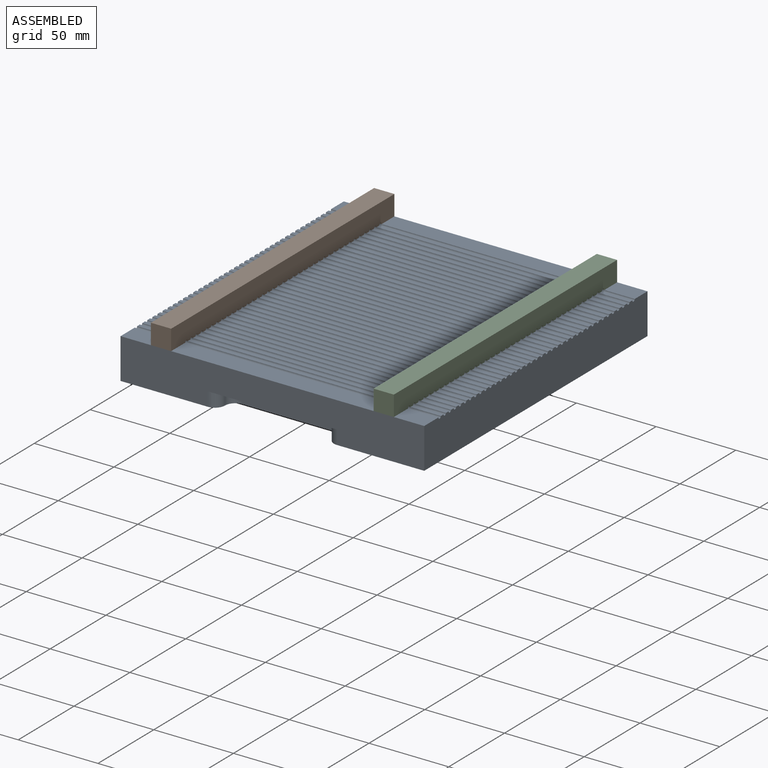
[diagram: assembled view]
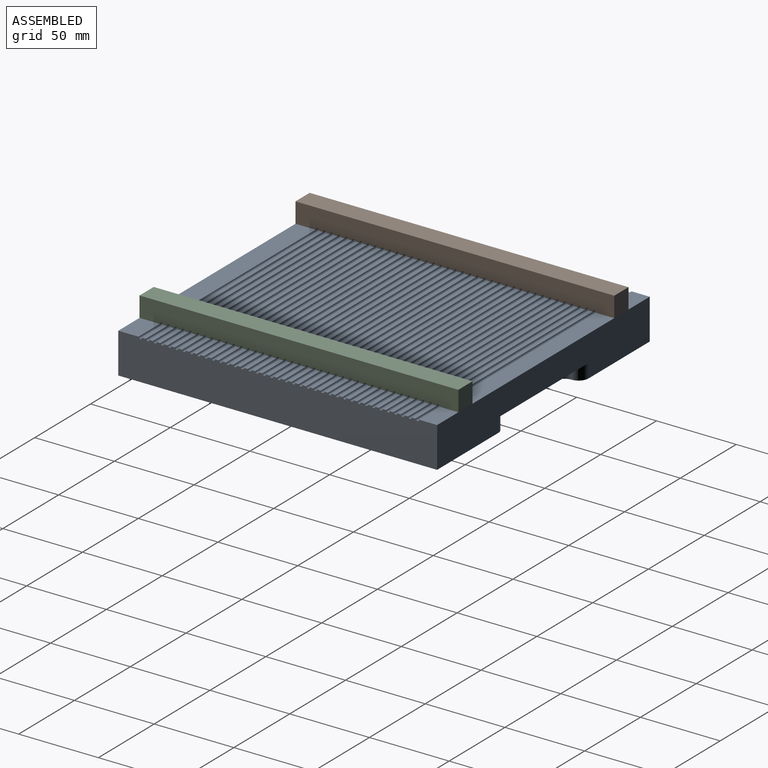
[diagram: assembled view, second angle]
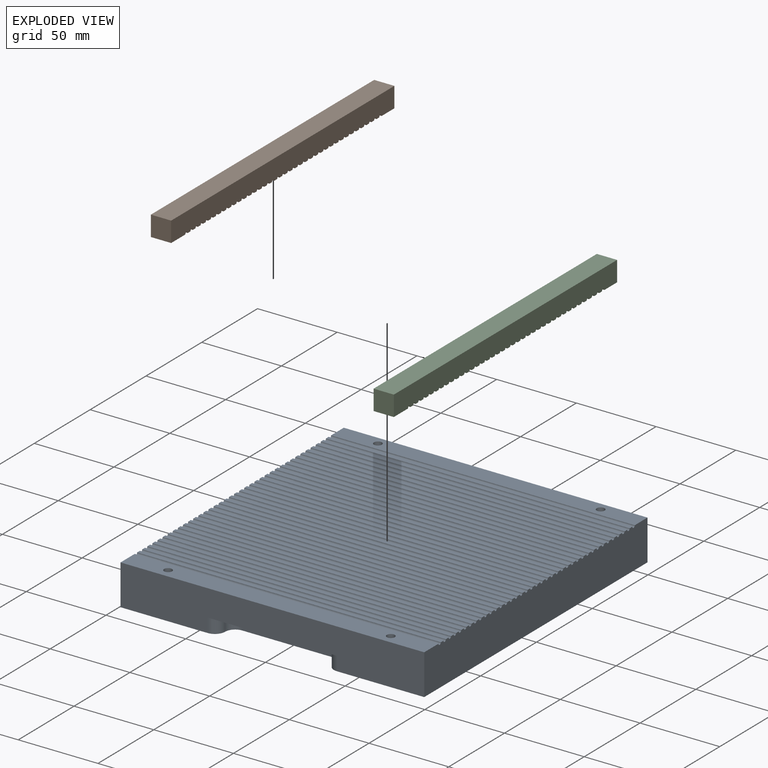
[diagram: exploded view]
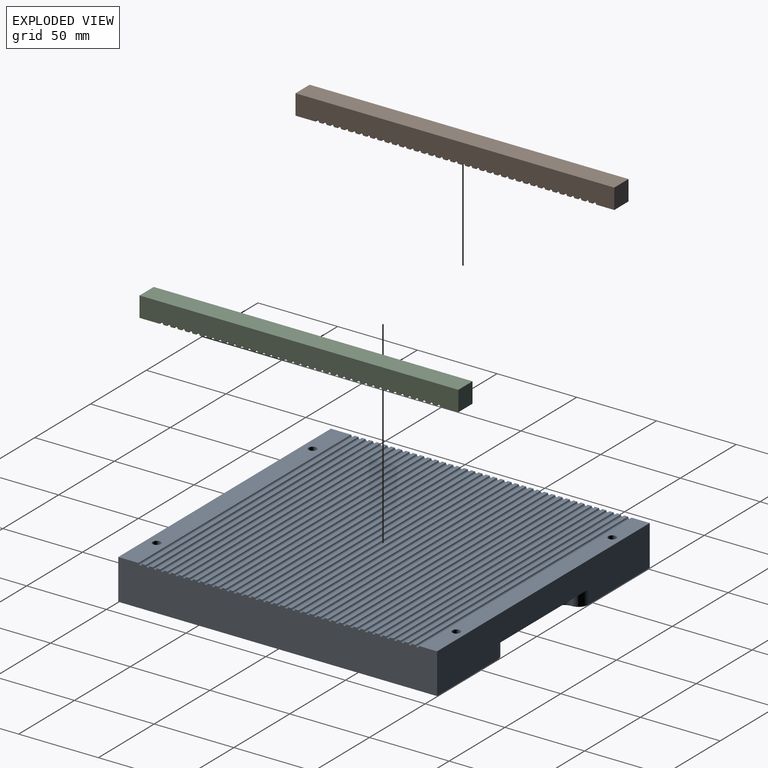
[diagram: exploded view, second angle]
ASSEMBLY  parts=3 mates=2
PART A: 112 faces, bbox 190.5x200x25.4 mm
  f0: plane 190.5x25.4mm, normal (0,-1,0), area 4128.7mm2, adj f1,f42,f81,f83,f101,f105,f106
  f1: plane 200x190.5mm, normal (0,0,-1), area 36251.4mm2, adj f0,f2,f42,f83,f92,f94,f96,f98
  f2: plane 190.5x25.4mm, normal (0,1,0), area 4128.7mm2, adj f1,f42,f46,f83,f103,f108,f111
  f3: cylinder r=1.08mm len=190.5mm, axis (1,0,0), area 646.1mm2, adj f42,f81,f82,f83
  f4: cylinder r=1.08mm len=190.5mm, axis (1,0,0), area 646.1mm2, adj f42,f80,f82,f83
  f5: cylinder r=1.08mm len=190.5mm, axis (1,0,0), area 646.1mm2, adj f42,f79,f80,f83
  f6: cylinder r=1.08mm len=190.5mm, axis (1,0,0), area 646.1mm2, adj f42,f78,f79,f83
  f7: cylinder r=1.08mm len=190.5mm, axis (1,0,0), area 646.1mm2, adj f42,f77,f78,f83
  f8: cylinder r=1.08mm len=190.5mm, axis (1,0,0), area 646.1mm2, adj f42,f76,f77,f83
  f9: cylinder r=1.08mm len=190.5mm, axis (1,0,0), area 646.1mm2, adj f42,f75,f76,f83
  f10: cylinder r=1.08mm len=190.5mm, axis (1,0,0), area 646.1mm2, adj f42,f74,f75,f83
  f11: cylinder r=1.08mm len=190.5mm, axis (1,0,0), area 646.1mm2, adj f42,f73,f74,f83
  f12: cylinder r=1.08mm len=190.5mm, axis (1,0,0), area 646.1mm2, adj f42,f72,f73,f83
  f13: cylinder r=1.08mm len=190.5mm, axis (1,0,0), area 646.1mm2, adj f42,f71,f72,f83
  f14: cylinder r=1.08mm len=190.5mm, axis (1,0,0), area 646.1mm2, adj f42,f70,f71,f83
  f15: cylinder r=1.08mm len=190.5mm, axis (1,0,0), area 646.1mm2, adj f42,f69,f70,f83
  f16: cylinder r=1.08mm len=190.5mm, axis (1,0,0), area 646.1mm2, adj f42,f68,f69,f83
  f17: cylinder r=1.08mm len=190.5mm, axis (1,0,0), area 646.1mm2, adj f42,f67,f68,f83
  f18: cylinder r=1.08mm len=190.5mm, axis (1,0,0), area 646.1mm2, adj f42,f66,f67,f83
  f19: cylinder r=1.08mm len=190.5mm, axis (1,0,0), area 646.1mm2, adj f42,f65,f66,f83
  f20: cylinder r=1.08mm len=190.5mm, axis (1,0,0), area 646.1mm2, adj f42,f64,f65,f83
  f21: cylinder r=1.08mm len=190.5mm, axis (1,0,0), area 646.1mm2, adj f42,f63,f64,f83
  f22: cylinder r=1.08mm len=190.5mm, axis (1,0,0), area 646.1mm2, adj f42,f62,f63,f83
  f23: cylinder r=1.08mm len=190.5mm, axis (1,0,0), area 646.1mm2, adj f42,f61,f62,f83
  f24: cylinder r=1.08mm len=190.5mm, axis (1,0,0), area 646.1mm2, adj f42,f60,f61,f83
  f25: cylinder r=1.08mm len=190.5mm, axis (1,0,0), area 646.1mm2, adj f42,f59,f60,f83
  f26: cylinder r=1.08mm len=190.5mm, axis (1,0,0), area 646.1mm2, adj f42,f47,f58,f83
  f27: cylinder r=1.08mm len=190.5mm, axis (1,0,0), area 646.1mm2, adj f42,f57,f58,f83
  f28: cylinder r=1.08mm len=190.5mm, axis (1,0,0), area 646.1mm2, adj f42,f56,f57,f83
  f29: cylinder r=1.08mm len=190.5mm, axis (1,0,0), area 646.1mm2, adj f42,f55,f56,f83
  f30: cylinder r=1.08mm len=190.5mm, axis (1,0,0), area 646.1mm2, adj f42,f54,f55,f83
  f31: cylinder r=1.08mm len=190.5mm, axis (1,0,0), area 646.1mm2, adj f42,f53,f54,f83
  f32: cylinder r=1.08mm len=190.5mm, axis (1,0,0), area 646.1mm2, adj f42,f52,f53,f83
  f33: cylinder r=1.08mm len=190.5mm, axis (1,0,0), area 646.1mm2, adj f42,f51,f52,f83
  f34: cylinder r=1.08mm len=190.5mm, axis (1,0,0), area 646.1mm2, adj f42,f50,f51,f83
  f35: cylinder r=1.08mm len=190.5mm, axis (1,0,0), area 646.1mm2, adj f42,f49,f50,f83
  f36: cylinder r=1.08mm len=190.5mm, axis (1,0,0), area 646.1mm2, adj f42,f43,f48,f83
  f37: cylinder r=1.08mm len=190.5mm, axis (1,0,0), area 646.1mm2, adj f42,f47,f59,f83
  f38: cylinder r=1.08mm len=190.5mm, axis (1,0,0), area 646.1mm2, adj f42,f45,f46,f83
  f39: cylinder r=1.08mm len=190.5mm, axis (1,0,0), area 646.1mm2, adj f42,f44,f45,f83
  f40: cylinder r=1.08mm len=190.5mm, axis (1,0,0), area 646.1mm2, adj f42,f44,f48,f83
  f41: cylinder r=1.08mm len=190.5mm, axis (1,0,0), area 646.1mm2, adj f42,f43,f49,f83
  f42: plane 200x25.4mm, normal (1,0,0), area 5008.6mm2, adj f0,f1,f2,f3,f4,f5,f6,f7
  f43: plane 190.5x2.41mm, normal (0,0,1), area 459.7mm2, adj f36,f41,f42,f83
  f44: plane 190.5x2.41mm, normal (0,0,1), area 459.7mm2, adj f39,f40,f42,f83
  f45: plane 190.5x2.41mm, normal (0,0,1), area 459.7mm2, adj f38,f39,f42,f83
  f46: plane 190.5x11.41mm, normal (0,0,1), area 2133.4mm2, adj f2,f38,f42,f83,f88,f90
  f47: plane 190.5x2.41mm, normal (0,0,1), area 459.7mm2, adj f26,f37,f42,f83
  f48: plane 190.5x2.41mm, normal (0,0,1), area 459.7mm2, adj f36,f40,f42,f83
  f49: plane 190.5x2.41mm, normal (0,0,1), area 459.7mm2, adj f35,f41,f42,f83
  f50: plane 190.5x2.41mm, normal (0,0,1), area 459.7mm2, adj f34,f35,f42,f83
  f51: plane 190.5x2.41mm, normal (0,0,1), area 459.7mm2, adj f33,f34,f42,f83
  f52: plane 190.5x2.41mm, normal (0,0,1), area 459.7mm2, adj f32,f33,f42,f83
  f53: plane 190.5x2.41mm, normal (0,0,1), area 459.7mm2, adj f31,f32,f42,f83
  f54: plane 190.5x2.41mm, normal (0,0,1), area 459.7mm2, adj f30,f31,f42,f83
  f55: plane 190.5x2.41mm, normal (0,0,1), area 459.7mm2, adj f29,f30,f42,f83
  f56: plane 190.5x2.41mm, normal (0,0,1), area 459.7mm2, adj f28,f29,f42,f83
  f57: plane 190.5x2.41mm, normal (0,0,1), area 459.7mm2, adj f27,f28,f42,f83
  f58: plane 190.5x2.41mm, normal (0,0,1), area 459.7mm2, adj f26,f27,f42,f83
  f59: plane 190.5x2.41mm, normal (0,0,1), area 459.7mm2, adj f25,f37,f42,f83
  f60: plane 190.5x2.41mm, normal (0,0,1), area 459.7mm2, adj f24,f25,f42,f83
  f61: plane 190.5x2.41mm, normal (0,0,1), area 459.7mm2, adj f23,f24,f42,f83
  f62: plane 190.5x2.41mm, normal (0,0,1), area 459.7mm2, adj f22,f23,f42,f83
  f63: plane 190.5x2.41mm, normal (0,0,1), area 459.7mm2, adj f21,f22,f42,f83
  f64: plane 190.5x2.41mm, normal (0,0,1), area 459.7mm2, adj f20,f21,f42,f83
  f65: plane 190.5x2.41mm, normal (0,0,1), area 459.7mm2, adj f19,f20,f42,f83
  f66: plane 190.5x2.41mm, normal (0,0,1), area 459.7mm2, adj f18,f19,f42,f83
  f67: plane 190.5x2.41mm, normal (0,0,1), area 459.7mm2, adj f17,f18,f42,f83
  f68: plane 190.5x2.41mm, normal (0,0,1), area 459.7mm2, adj f16,f17,f42,f83
  f69: plane 190.5x2.41mm, normal (0,0,1), area 459.7mm2, adj f15,f16,f42,f83
  f70: plane 190.5x2.41mm, normal (0,0,1), area 459.7mm2, adj f14,f15,f42,f83
  f71: plane 190.5x2.41mm, normal (0,0,1), area 459.7mm2, adj f13,f14,f42,f83
  f72: plane 190.5x2.41mm, normal (0,0,1), area 459.7mm2, adj f12,f13,f42,f83
  f73: plane 190.5x2.41mm, normal (0,0,1), area 459.7mm2, adj f11,f12,f42,f83
  f74: plane 190.5x2.41mm, normal (0,0,1), area 459.7mm2, adj f10,f11,f42,f83
  f75: plane 190.5x2.41mm, normal (0,0,1), area 459.7mm2, adj f9,f10,f42,f83
  f76: plane 190.5x2.41mm, normal (0,0,1), area 459.7mm2, adj f8,f9,f42,f83
  f77: plane 190.5x2.41mm, normal (0,0,1), area 459.7mm2, adj f7,f8,f42,f83
  f78: plane 190.5x2.41mm, normal (0,0,1), area 459.7mm2, adj f6,f7,f42,f83
  f79: plane 190.5x2.41mm, normal (0,0,1), area 459.7mm2, adj f5,f6,f42,f83
  f80: plane 190.5x2.41mm, normal (0,0,1), area 459.7mm2, adj f4,f5,f42,f83
  f81: plane 190.5x12.7mm, normal (0,0,1), area 2380.1mm2, adj f0,f3,f42,f83,f84,f86
  f82: plane 190.5x2.41mm, normal (0,0,1), area 459.7mm2, adj f3,f4,f42,f83
  f83: plane 200x25.4mm, normal (-1,0,0), area 5008.6mm2, adj f0,f1,f2,f3,f4,f5,f6,f7
  f84: cylinder r=2.5mm len=6.35mm, axis (0,0,1), area 99.7mm2, adj f81,f85
  f85: plane 5x5mm, normal (0,0,1), area 19.6mm2, adj f84
  f86: cylinder r=2.5mm len=6.35mm, axis (0,0,1), area 99.7mm2, adj f81,f87
  f87: plane 5x5mm, normal (0,0,1), area 19.6mm2, adj f86
  f88: cylinder r=2.5mm len=6.35mm, axis (0,0,1), area 99.7mm2, adj f46,f89
  f89: plane 5x5mm, normal (0,0,1), area 19.6mm2, adj f88
  f90: cylinder r=2.5mm len=6.35mm, axis (0,0,1), area 99.7mm2, adj f46,f91
  f91: plane 5x5mm, normal (0,0,1), area 19.6mm2, adj f90
  f92: cylinder r=3mm len=6.35mm, axis (0,0,-1), area 119.7mm2, adj f1,f93
  f93: plane 6x6mm, normal (0,0,-1), area 28.3mm2, adj f92
  f94: cylinder r=3mm len=6.35mm, axis (0,0,-1), area 119.7mm2, adj f1,f95
  f95: plane 6x6mm, normal (0,0,-1), area 28.3mm2, adj f94
  f96: cylinder r=3mm len=6.35mm, axis (0,0,-1), area 119.7mm2, adj f1,f97
  f97: plane 6x6mm, normal (0,0,-1), area 28.3mm2, adj f96
  f98: cylinder r=3mm len=6.35mm, axis (0,0,-1), area 119.7mm2, adj f1,f99
  f99: plane 6x6mm, normal (0,0,-1), area 28.3mm2, adj f98
  f100: plane 55.63x8.76mm, normal (0,-1,0), area 487.5mm2, adj f1,f101,f104,f107
  f101: plane 81.03x12.7mm, normal (0,0,-1), area 867.7mm2, adj f0,f100,f104,f105,f106,f107
  f102: plane 55.63x8.76mm, normal (0,1,0), area 487.5mm2, adj f1,f103,f109,f110
  f103: plane 81.03x12.7mm, normal (0,0,-1), area 867.7mm2, adj f2,f102,f108,f109,f110,f111
  f104: cylinder r=6.35mm len=8.76mm, axis (0,0,1), area 87.4mm2, adj f1,f100,f101,f105
  f105: cylinder r=6.35mm len=8.76mm, axis (0,0,1), area 87.4mm2, adj f0,f1,f101,f104
  f106: cylinder r=6.35mm len=8.76mm, axis (0,0,-1), area 87.4mm2, adj f0,f1,f101,f107
  f107: cylinder r=6.35mm len=8.76mm, axis (0,0,-1), area 87.4mm2, adj f1,f100,f101,f106
  f108: cylinder r=6.35mm len=8.76mm, axis (0,0,1), area 87.4mm2, adj f1,f2,f103,f109
  f109: cylinder r=6.35mm len=8.76mm, axis (0,0,1), area 87.4mm2, adj f1,f102,f103,f108
  f110: cylinder r=6.35mm len=8.76mm, axis (0,0,-1), area 87.4mm2, adj f1,f102,f103,f111
  f111: cylinder r=6.35mm len=8.76mm, axis (0,0,-1), area 87.4mm2, adj f1,f2,f103,f110
PART B: 88 faces, bbox 12.7x200x12.7 mm
  f0: plane 12.7x2.41mm, normal (0,0,-1), area 30.6mm2, adj f40,f42,f86,f87
  f1: plane 12.7x2.41mm, normal (0,0,-1), area 30.6mm2, adj f40,f42,f85,f86
  f2: plane 12.7x2.41mm, normal (0,0,-1), area 30.6mm2, adj f40,f42,f84,f85
  f3: plane 12.7x2.41mm, normal (0,0,-1), area 30.6mm2, adj f40,f42,f83,f84
  f4: plane 12.7x2.41mm, normal (0,0,-1), area 30.6mm2, adj f40,f42,f82,f83
  f5: plane 12.7x2.41mm, normal (0,0,-1), area 30.6mm2, adj f40,f42,f81,f82
  f6: plane 12.7x2.41mm, normal (0,0,-1), area 30.6mm2, adj f40,f42,f80,f81
  f7: plane 12.7x2.41mm, normal (0,0,-1), area 30.6mm2, adj f40,f42,f79,f80
  f8: plane 12.7x2.41mm, normal (0,0,-1), area 30.6mm2, adj f40,f42,f78,f79
  f9: plane 12.7x2.41mm, normal (0,0,-1), area 30.6mm2, adj f40,f42,f77,f78
  f10: plane 12.7x2.41mm, normal (0,0,-1), area 30.6mm2, adj f40,f42,f76,f77
  f11: plane 12.7x2.41mm, normal (0,0,-1), area 30.6mm2, adj f40,f42,f75,f76
  f12: plane 12.7x2.41mm, normal (0,0,-1), area 30.6mm2, adj f40,f42,f74,f75
  f13: plane 12.7x2.41mm, normal (0,0,-1), area 30.6mm2, adj f40,f42,f73,f74
  f14: plane 12.7x2.41mm, normal (0,0,-1), area 30.6mm2, adj f40,f42,f72,f73
  f15: plane 12.7x2.41mm, normal (0,0,-1), area 30.6mm2, adj f40,f42,f71,f72
  f16: plane 12.7x2.41mm, normal (0,0,-1), area 30.6mm2, adj f40,f42,f70,f71
  f17: plane 12.7x2.41mm, normal (0,0,-1), area 30.6mm2, adj f40,f42,f69,f70
  f18: plane 12.7x2.41mm, normal (0,0,-1), area 30.6mm2, adj f40,f42,f68,f69
  f19: plane 12.7x2.41mm, normal (0,0,-1), area 30.6mm2, adj f40,f42,f67,f68
  f20: plane 12.7x2.41mm, normal (0,0,-1), area 30.6mm2, adj f40,f42,f66,f67
  f21: plane 12.7x2.41mm, normal (0,0,-1), area 30.6mm2, adj f40,f42,f65,f66
  f22: plane 12.7x2.41mm, normal (0,0,-1), area 30.6mm2, adj f40,f42,f64,f65
  f23: plane 12.7x2.41mm, normal (0,0,-1), area 30.6mm2, adj f40,f42,f63,f64
  f24: plane 12.7x2.41mm, normal (0,0,-1), area 30.6mm2, adj f40,f42,f62,f63
  f25: plane 12.7x2.41mm, normal (0,0,-1), area 30.6mm2, adj f40,f42,f61,f62
  f26: plane 12.7x2.41mm, normal (0,0,-1), area 30.6mm2, adj f40,f42,f60,f61
  f27: plane 12.7x2.41mm, normal (0,0,-1), area 30.6mm2, adj f40,f42,f59,f60
  f28: plane 12.7x2.41mm, normal (0,0,-1), area 30.6mm2, adj f40,f42,f58,f59
  f29: plane 12.7x2.41mm, normal (0,0,-1), area 30.6mm2, adj f40,f42,f57,f58
  f30: plane 12.7x2.41mm, normal (0,0,-1), area 30.6mm2, adj f40,f42,f56,f57
  f31: plane 12.7x2.41mm, normal (0,0,-1), area 30.6mm2, adj f40,f42,f55,f56
  f32: plane 12.7x2.41mm, normal (0,0,-1), area 30.6mm2, adj f40,f42,f54,f55
  f33: plane 12.7x2.41mm, normal (0,0,-1), area 30.6mm2, adj f40,f42,f53,f54
  f34: plane 12.7x2.41mm, normal (0,0,-1), area 30.6mm2, adj f40,f42,f52,f53
  f35: plane 12.7x2.41mm, normal (0,0,-1), area 30.6mm2, adj f40,f42,f51,f52
  f36: plane 12.7x2.41mm, normal (0,0,-1), area 30.6mm2, adj f40,f42,f50,f51
  f37: plane 12.7x2.41mm, normal (0,0,-1), area 30.6mm2, adj f40,f42,f49,f50
  f38: plane 12.7x12.7mm, normal (0,0,-1), area 141.7mm2, adj f39,f40,f42,f47,f49
  f39: plane 12.7x12.7mm, normal (0,1,0), area 161.3mm2, adj f38,f40,f42,f43
  f40: plane 200x12.7mm, normal (-1,0,0), area 2468.6mm2, adj f0,f1,f2,f3,f4,f5,f6,f7
  f41: plane 12.7x12.7mm, normal (0,-1,0), area 161.3mm2, adj f40,f42,f43,f44
  f42: plane 200x12.7mm, normal (1,0,0), area 2468.6mm2, adj f0,f1,f2,f3,f4,f5,f6,f7
  f43: plane 200x12.7mm, normal (0,0,1), area 2540mm2, adj f39,f40,f41,f42
  f44: plane 12.7x11.41mm, normal (0,0,-1), area 125.2mm2, adj f40,f41,f42,f45,f87
  f45: cylinder r=2.5mm len=6.35mm, axis (0,0,-1), area 99.7mm2, adj f44,f46
  f46: plane 5x5mm, normal (0,0,-1), area 19.6mm2, adj f45
  f47: cylinder r=2.5mm len=6.35mm, axis (0,0,-1), area 99.7mm2, adj f38,f48
  f48: plane 5x5mm, normal (0,0,-1), area 19.6mm2, adj f47
  f49: cylinder r=1.08mm len=12.7mm, axis (1,0,0), area 43.1mm2, adj f37,f38,f40,f42
  f50: cylinder r=1.08mm len=12.7mm, axis (1,0,0), area 43.1mm2, adj f36,f37,f40,f42
  f51: cylinder r=1.08mm len=12.7mm, axis (1,0,0), area 43.1mm2, adj f35,f36,f40,f42
  f52: cylinder r=1.08mm len=12.7mm, axis (1,0,0), area 43.1mm2, adj f34,f35,f40,f42
  f53: cylinder r=1.08mm len=12.7mm, axis (1,0,0), area 43.1mm2, adj f33,f34,f40,f42
  f54: cylinder r=1.08mm len=12.7mm, axis (1,0,0), area 43.1mm2, adj f32,f33,f40,f42
  f55: cylinder r=1.08mm len=12.7mm, axis (1,0,0), area 43.1mm2, adj f31,f32,f40,f42
  f56: cylinder r=1.08mm len=12.7mm, axis (1,0,0), area 43.1mm2, adj f30,f31,f40,f42
  f57: cylinder r=1.08mm len=12.7mm, axis (1,0,0), area 43.1mm2, adj f29,f30,f40,f42
  f58: cylinder r=1.08mm len=12.7mm, axis (1,0,0), area 43.1mm2, adj f28,f29,f40,f42
  f59: cylinder r=1.08mm len=12.7mm, axis (1,0,0), area 43.1mm2, adj f27,f28,f40,f42
  f60: cylinder r=1.08mm len=12.7mm, axis (1,0,0), area 43.1mm2, adj f26,f27,f40,f42
  f61: cylinder r=1.08mm len=12.7mm, axis (1,0,0), area 43.1mm2, adj f25,f26,f40,f42
  f62: cylinder r=1.08mm len=12.7mm, axis (1,0,0), area 43.1mm2, adj f24,f25,f40,f42
  f63: cylinder r=1.08mm len=12.7mm, axis (1,0,0), area 43.1mm2, adj f23,f24,f40,f42
  f64: cylinder r=1.08mm len=12.7mm, axis (1,0,0), area 43.1mm2, adj f22,f23,f40,f42
  f65: cylinder r=1.08mm len=12.7mm, axis (1,0,0), area 43.1mm2, adj f21,f22,f40,f42
  f66: cylinder r=1.08mm len=12.7mm, axis (1,0,0), area 43.1mm2, adj f20,f21,f40,f42
  f67: cylinder r=1.08mm len=12.7mm, axis (1,0,0), area 43.1mm2, adj f19,f20,f40,f42
  f68: cylinder r=1.08mm len=12.7mm, axis (1,0,0), area 43.1mm2, adj f18,f19,f40,f42
  f69: cylinder r=1.08mm len=12.7mm, axis (1,0,0), area 43.1mm2, adj f17,f18,f40,f42
  f70: cylinder r=1.08mm len=12.7mm, axis (1,0,0), area 43.1mm2, adj f16,f17,f40,f42
  f71: cylinder r=1.08mm len=12.7mm, axis (1,0,0), area 43.1mm2, adj f15,f16,f40,f42
  f72: cylinder r=1.08mm len=12.7mm, axis (1,0,0), area 43.1mm2, adj f14,f15,f40,f42
  f73: cylinder r=1.08mm len=12.7mm, axis (1,0,0), area 43.1mm2, adj f13,f14,f40,f42
  f74: cylinder r=1.08mm len=12.7mm, axis (1,0,0), area 43.1mm2, adj f12,f13,f40,f42
  f75: cylinder r=1.08mm len=12.7mm, axis (1,0,0), area 43.1mm2, adj f11,f12,f40,f42
  f76: cylinder r=1.08mm len=12.7mm, axis (1,0,0), area 43.1mm2, adj f10,f11,f40,f42
  f77: cylinder r=1.08mm len=12.7mm, axis (1,0,0), area 43.1mm2, adj f9,f10,f40,f42
  f78: cylinder r=1.08mm len=12.7mm, axis (1,0,0), area 43.1mm2, adj f8,f9,f40,f42
  f79: cylinder r=1.08mm len=12.7mm, axis (1,0,0), area 43.1mm2, adj f7,f8,f40,f42
  f80: cylinder r=1.08mm len=12.7mm, axis (1,0,0), area 43.1mm2, adj f6,f7,f40,f42
  f81: cylinder r=1.08mm len=12.7mm, axis (1,0,0), area 43.1mm2, adj f5,f6,f40,f42
  f82: cylinder r=1.08mm len=12.7mm, axis (1,0,0), area 43.1mm2, adj f4,f5,f40,f42
  f83: cylinder r=1.08mm len=12.7mm, axis (1,0,0), area 43.1mm2, adj f3,f4,f40,f42
  f84: cylinder r=1.08mm len=12.7mm, axis (1,0,0), area 43.1mm2, adj f2,f3,f40,f42
  f85: cylinder r=1.08mm len=12.7mm, axis (1,0,0), area 43.1mm2, adj f1,f2,f40,f42
  f86: cylinder r=1.08mm len=12.7mm, axis (1,0,0), area 43.1mm2, adj f0,f1,f40,f42
  f87: cylinder r=1.08mm len=12.7mm, axis (1,0,0), area 43.1mm2, adj f0,f40,f42,f44
PART C: same geometry as B
PLACE A t=(-8.75,4.85,-12.7)mm
PLACE B rot(axis=(0,0,1),180deg) t=(-68.85,4.85,12.7)mm
PLACE C rot(axis=(0,0,1),180deg) t=(70.85,4.85,12.7)mm
MATE pin_slot C.f47 <-> A.f84  axis (0,0,-1) through (70.85,-88.8,12.7)mm
MATE pin_slot B.f47 <-> A.f86  axis (0,0,-1) through (-68.85,-88.8,12.7)mm
